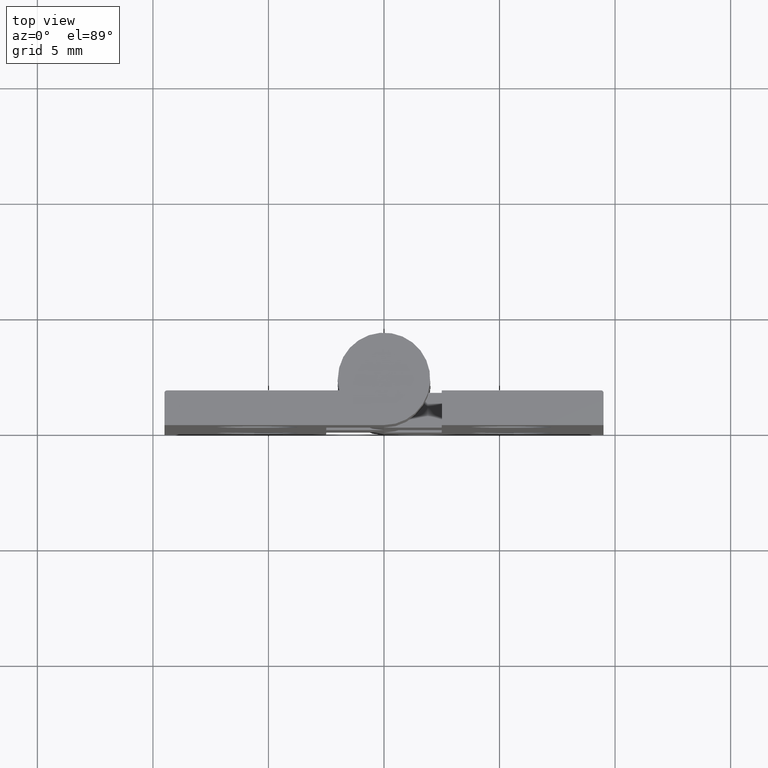
[diagram: clean part render]
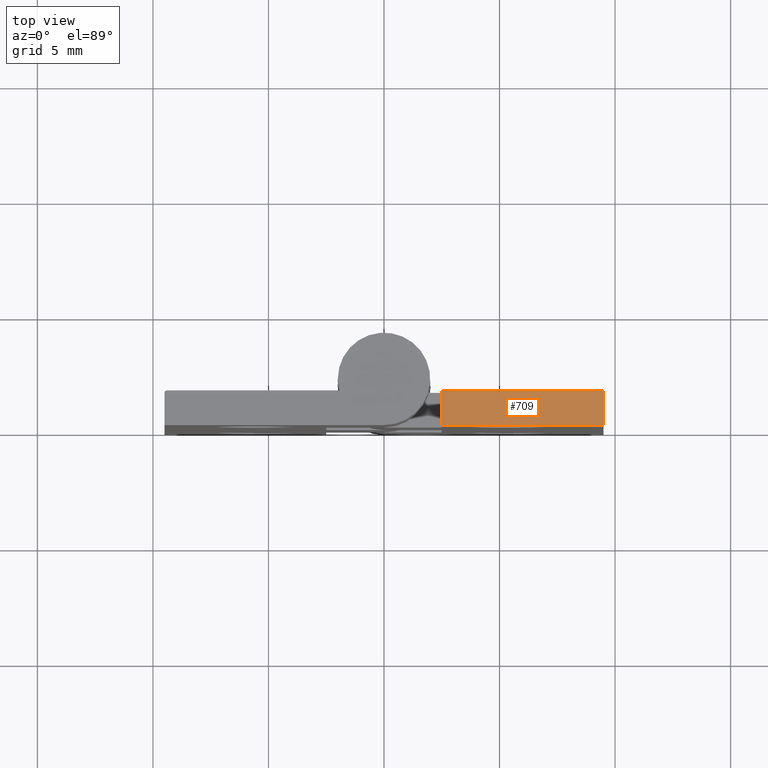
[diagram: same view with one face highlighted and labeled with its STEP entity id]
A machine part, top view. The second image highlights one B-rep face of the part: STEP entity #709.
In plain terms, the highlighted planar face has unit normal (0, 0, 1).
Its self-contained STEP definition (entity closure, byte-faithful):
#99=CIRCLE('',#770,0.1);
#138=FACE_OUTER_BOUND('',#193,.T.);
#193=EDGE_LOOP('',(#584,#585,#586,#587,#588));
#257=LINE('',#1139,#311);
#260=LINE('',#1145,#314);
#261=LINE('',#1147,#315);
#262=LINE('',#1148,#316);
#311=VECTOR('',#925,1.4);
#314=VECTOR('',#930,6.9);
#315=VECTOR('',#931,1.5);
#316=VECTOR('',#932,7.);
#368=VERTEX_POINT('',#1129);
#369=VERTEX_POINT('',#1130);
#372=VERTEX_POINT('',#1138);
#374=VERTEX_POINT('',#1144);
#375=VERTEX_POINT('',#1146);
#445=EDGE_CURVE('',#368,#369,#99,.T.);
#449=EDGE_CURVE('',#372,#369,#257,.T.);
#452=EDGE_CURVE('',#368,#374,#260,.T.);
#453=EDGE_CURVE('',#374,#375,#261,.T.);
#454=EDGE_CURVE('',#375,#372,#262,.T.);
#584=ORIENTED_EDGE('',*,*,#445,.F.);
#585=ORIENTED_EDGE('',*,*,#452,.T.);
#586=ORIENTED_EDGE('',*,*,#453,.T.);
#587=ORIENTED_EDGE('',*,*,#454,.T.);
#588=ORIENTED_EDGE('',*,*,#449,.T.);
#677=PLANE('',#773);
#709=ADVANCED_FACE('',(#138),#677,.T.);
#770=AXIS2_PLACEMENT_3D('',#1131,#917,#918);
#773=AXIS2_PLACEMENT_3D('',#1143,#928,#929);
#917=DIRECTION('center_axis',(0.,0.,-1.));
#918=DIRECTION('ref_axis',(0.707106781186548,0.707106781186548,0.));
#925=DIRECTION('',(7.40148683083438E-16,1.,0.));
#928=DIRECTION('center_axis',(0.,0.,1.));
#929=DIRECTION('ref_axis',(1.,0.,0.));
#930=DIRECTION('',(-1.,-1.1686558153949E-16,0.));
#931=DIRECTION('',(0.,-1.,0.));
#932=DIRECTION('',(1.,0.,0.));
#1129=CARTESIAN_POINT('',(9.4,1.5,12.5));
#1130=CARTESIAN_POINT('',(9.5,1.4,12.5));
#1131=CARTESIAN_POINT('Origin',(9.4,1.4,12.5));
#1138=CARTESIAN_POINT('',(9.5,0.,12.5));
#1139=CARTESIAN_POINT('',(9.5,0.,12.5));
#1143=CARTESIAN_POINT('Origin',(4.75,0.75,12.5));
#1144=CARTESIAN_POINT('',(2.5,1.5,12.5));
#1145=CARTESIAN_POINT('',(9.5,1.5,12.5));
#1146=CARTESIAN_POINT('',(2.5,0.,12.5));
#1147=CARTESIAN_POINT('',(2.5,0.375,12.5));
#1148=CARTESIAN_POINT('',(0.,0.,12.5));